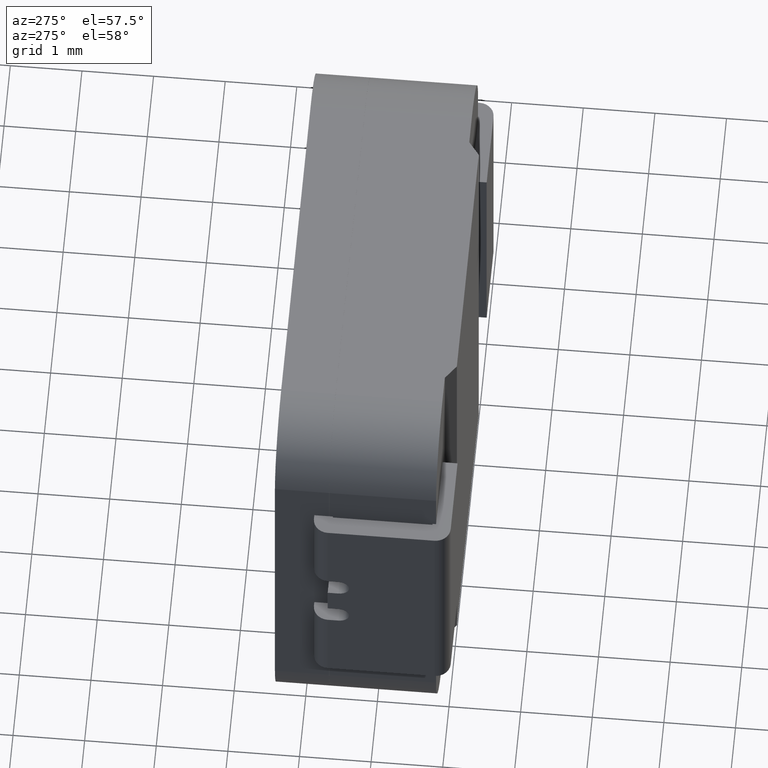
[diagram: clean part render]
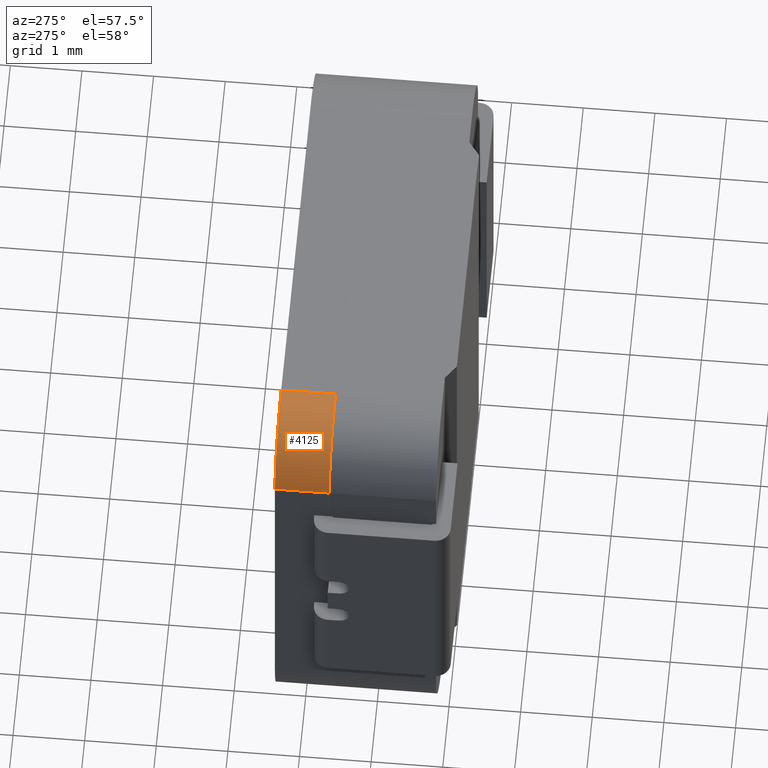
[diagram: same view with one face highlighted and labeled with its STEP entity id]
A machine part, auxiliary view. The second image highlights one B-rep face of the part: STEP entity #4125.
In plain terms, the highlighted cylindrical surface (partial cylindrical patch) has radius 1 mm, axis along (0, -1, 0).
Its self-contained STEP definition (entity closure, byte-faithful):
#113 = ORIENTED_EDGE ( 'NONE', *, *, #5325, .F. ) ;
#302 = EDGE_CURVE ( 'NONE', #2461, #3955, #2629, .T. ) ;
#694 = CARTESIAN_POINT ( 'NONE',  ( -2.350000000000000089, 1.640999999999999792, 3.349999999999999645 ) ) ;
#951 = DIRECTION ( 'NONE',  ( 0.0000000000000000000, -1.000000000000000000, 0.0000000000000000000 ) ) ;
#1013 = DIRECTION ( 'NONE',  ( -0.0000000000000000000, 1.000000000000000000, -0.0000000000000000000 ) ) ;
#1260 = AXIS2_PLACEMENT_3D ( 'NONE', #6002, #3398, #2898 ) ;
#1486 = CARTESIAN_POINT ( 'NONE',  ( -3.350000000000000089, 2.399999999999999911, 2.349999999999999645 ) ) ;
#1541 = AXIS2_PLACEMENT_3D ( 'NONE', #5103, #951, #1610 ) ;
#1610 = DIRECTION ( 'NONE',  ( 0.0000000000000000000, 0.0000000000000000000, -1.000000000000000000 ) ) ;
#1799 = DIRECTION ( 'NONE',  ( 0.0000000000000000000, -1.000000000000000000, 0.0000000000000000000 ) ) ;
#1984 = DIRECTION ( 'NONE',  ( 0.0000000000000000000, -1.000000000000000000, -0.0000000000000000000 ) ) ;
#2214 = VERTEX_POINT ( 'NONE', #694 ) ;
#2331 = EDGE_CURVE ( 'NONE', #3955, #2530, #3421, .T. ) ;
#2461 = VERTEX_POINT ( 'NONE', #3029 ) ;
#2467 = VECTOR ( 'NONE', #1013, 1000.000000000000000 ) ;
#2505 = DIRECTION ( 'NONE',  ( 0.0000000000000000000, 0.0000000000000000000, 1.000000000000000000 ) ) ;
#2530 = VERTEX_POINT ( 'NONE', #3652 ) ;
#2629 = LINE ( 'NONE', #1486, #2467 ) ;
#2868 = LINE ( 'NONE', #5969, #5957 ) ;
#2898 = DIRECTION ( 'NONE',  ( 0.0000000000000000000, 0.0000000000000000000, 1.000000000000000000 ) ) ;
#2973 = CARTESIAN_POINT ( 'NONE',  ( -3.350000000000000089, 2.399999999999999911, 2.349999999999999645 ) ) ;
#3029 = CARTESIAN_POINT ( 'NONE',  ( -3.350000000000000089, 1.640999999999999792, 2.349999999999999645 ) ) ;
#3116 = ORIENTED_EDGE ( 'NONE', *, *, #2331, .F. ) ;
#3183 = FACE_OUTER_BOUND ( 'NONE', #4696, .T. ) ;
#3398 = DIRECTION ( 'NONE',  ( -0.0000000000000000000, 1.000000000000000000, 0.0000000000000000000 ) ) ;
#3421 = CIRCLE ( 'NONE', #1260, 1.000000000000000000 ) ;
#3652 = CARTESIAN_POINT ( 'NONE',  ( -2.350000000000000089, 2.399999999999999911, 3.349999999999999645 ) ) ;
#3955 = VERTEX_POINT ( 'NONE', #2973 ) ;
#4125 = ADVANCED_FACE ( 'NONE', ( #3183 ), #5374, .T. ) ;
#4696 = EDGE_LOOP ( 'NONE', ( #3116, #5891, #5698, #113 ) ) ;
#5064 = EDGE_CURVE ( 'NONE', #2214, #2461, #6703, .T. ) ;
#5083 = CARTESIAN_POINT ( 'NONE',  ( -2.350000000000000089, 1.640999999999999792, 2.349999999999999645 ) ) ;
#5103 = CARTESIAN_POINT ( 'NONE',  ( -2.350000000000000089, 2.399999999999999911, 2.349999999999999645 ) ) ;
#5325 = EDGE_CURVE ( 'NONE', #2530, #2214, #2868, .T. ) ;
#5374 = CYLINDRICAL_SURFACE ( 'NONE', #1541, 1.000000000000000000 ) ;
#5405 = AXIS2_PLACEMENT_3D ( 'NONE', #5083, #1984, #2505 ) ;
#5698 = ORIENTED_EDGE ( 'NONE', *, *, #5064, .F. ) ;
#5891 = ORIENTED_EDGE ( 'NONE', *, *, #302, .F. ) ;
#5957 = VECTOR ( 'NONE', #1799, 1000.000000000000000 ) ;
#5969 = CARTESIAN_POINT ( 'NONE',  ( -2.350000000000000089, 2.399999999999999911, 3.349999999999999645 ) ) ;
#6002 = CARTESIAN_POINT ( 'NONE',  ( -2.350000000000000089, 2.399999999999999911, 2.349999999999999645 ) ) ;
#6703 = CIRCLE ( 'NONE', #5405, 1.000000000000000000 ) ;